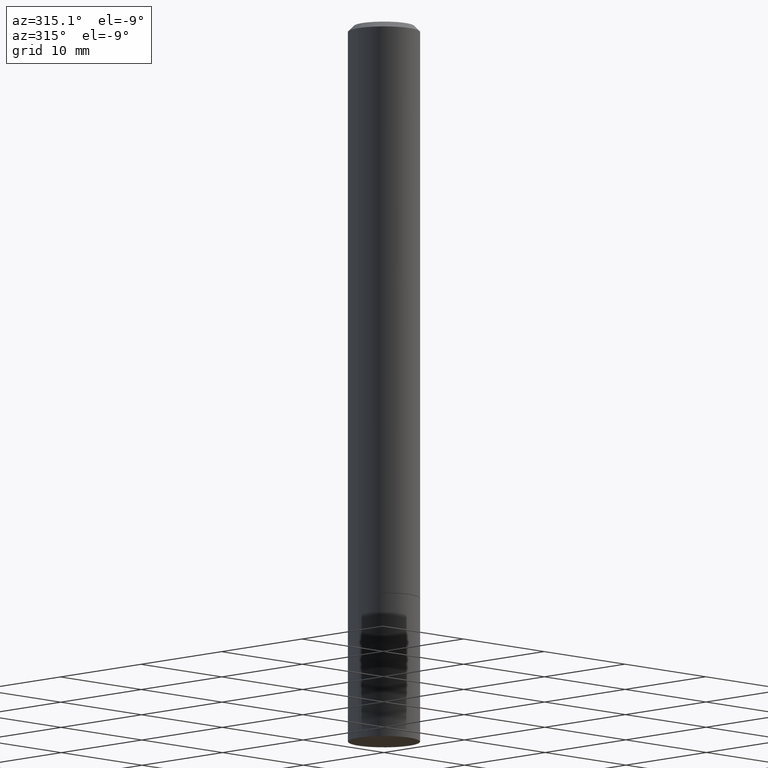
[diagram: clean part render]
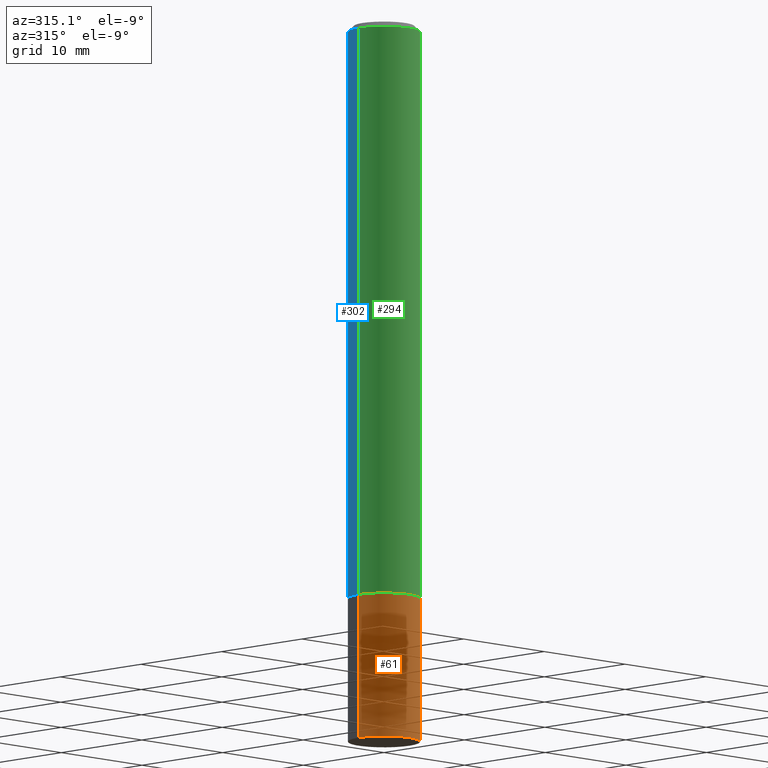
[diagram: same view with three faces highlighted in distinct colors, each labeled with its STEP entity id]
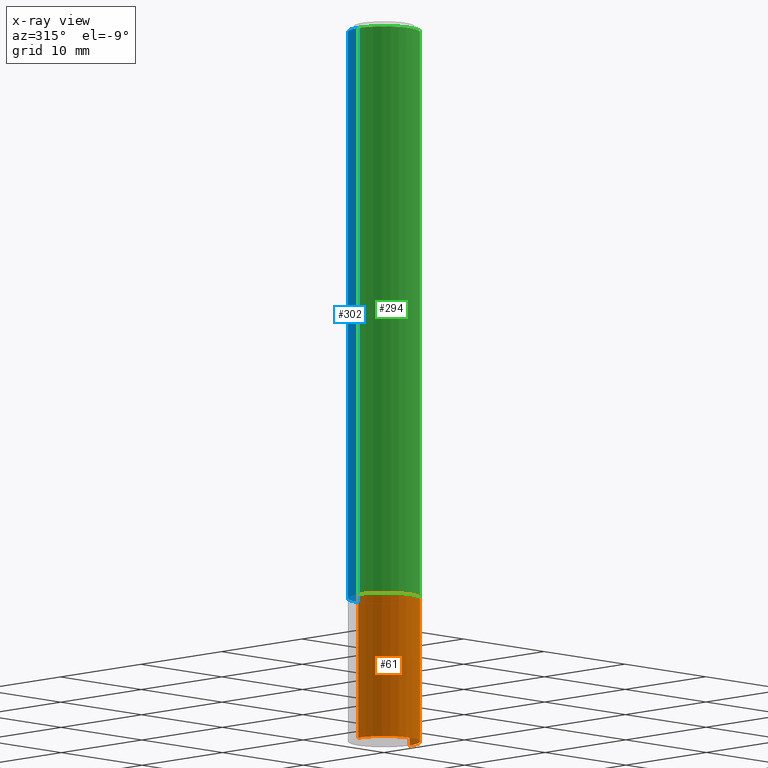
[diagram: x-ray of the same camera — body ghosted, the three highlighted faces saturated]
A machine part, auxiliary view with three faces highlighted in distinct colors.
The next image is the same camera in x-ray (body ghosted, the three faces saturated) — at least one of them is partly hidden behind the body in this view.
Their STEP definitions:

[orange] entity #61 — the highlighted cylindrical surface (edge-blend (fillet) strip) has radius 3.175 mm, axis along (-0, 0, 1).
#1 = CIRCLE ( 'NONE', #197, 0.1250000000000000000 ) ;
#14 = DIRECTION ( 'NONE',  ( 1.000000000000000000, -6.982962677686270655E-15, 0.000000000000000000 ) ) ;
#24 = CARTESIAN_POINT ( 'NONE',  ( -0.1250000000000000000, 8.881784197001252323E-16, -6.148668862818632227E-30 ) ) ;
#41 = VERTEX_POINT ( 'NONE', #315 ) ;
#43 = ORIENTED_EDGE ( 'NONE', *, *, #85, .F. ) ;
#53 = ORIENTED_EDGE ( 'NONE', *, *, #95, .T. ) ;
#61 = ADVANCED_FACE ( 'NONE', ( #348 ), #156, .T. ) ;
#66 = VECTOR ( 'NONE', #142, 39.37007874015748143 ) ;
#71 = LINE ( 'NONE', #131, #134 ) ;
#72 = DIRECTION ( 'NONE',  ( 1.000000000000000000, -6.982962677686266711E-15, 4.876176775795935793E-29 ) ) ;
#73 = VERTEX_POINT ( 'NONE', #322 ) ;
#85 = EDGE_CURVE ( 'NONE', #73, #41, #214, .T. ) ;
#88 = AXIS2_PLACEMENT_3D ( 'NONE', #247, #193, #14 ) ;
#95 = EDGE_CURVE ( 'NONE', #338, #41, #71, .T. ) ;
#101 = DIRECTION ( 'NONE',  ( -2.445468806185136597E-29, 3.491481338843145583E-15, 1.000000000000000000 ) ) ;
#131 = CARTESIAN_POINT ( 'NONE',  ( 0.1250000000000000000, -8.728703347107833388E-16, 6.095220969744919741E-30 ) ) ;
#134 = VECTOR ( 'NONE', #166, 39.37007874015748143 ) ;
#142 = DIRECTION ( 'NONE',  ( -2.445468806185136877E-29, 3.491481338843145188E-15, 1.000000000000000000 ) ) ;
#152 = CARTESIAN_POINT ( 'NONE',  ( 6.113672015462842613E-29, -8.728703347107864943E-15, -2.500000000000000000 ) ) ;
#156 = CYLINDRICAL_SURFACE ( 'NONE', #189, 0.1250000000000000000 ) ;
#166 = DIRECTION ( 'NONE',  ( -2.445468806185136877E-29, 3.491481338843145188E-15, 1.000000000000000000 ) ) ;
#180 = CARTESIAN_POINT ( 'NONE',  ( -0.1250000000000000000, -6.967654592696952427E-15, -2.500000000000000000 ) ) ;
#189 = AXIS2_PLACEMENT_3D ( 'NONE', #195, #101, #72 ) ;
#193 = DIRECTION ( 'NONE',  ( -2.445468806185136597E-29, 3.491481338843145583E-15, 1.000000000000000000 ) ) ;
#195 = CARTESIAN_POINT ( 'NONE',  ( 0.000000000000000000, 0.000000000000000000, 0.000000000000000000 ) ) ;
#197 = AXIS2_PLACEMENT_3D ( 'NONE', #152, #201, #366 ) ;
#201 = DIRECTION ( 'NONE',  ( -2.445468806185136597E-29, 3.491481338843145583E-15, 1.000000000000000000 ) ) ;
#214 = CIRCLE ( 'NONE', #88, 0.1250000000000000000 ) ;
#220 = ORIENTED_EDGE ( 'NONE', *, *, #357, .F. ) ;
#226 = CARTESIAN_POINT ( 'NONE',  ( 0.1250000000000000000, -9.601573681818648281E-15, -2.500000000000000000 ) ) ;
#243 = ORIENTED_EDGE ( 'NONE', *, *, #253, .T. ) ;
#247 = CARTESIAN_POINT ( 'NONE',  ( 4.890937612370273194E-29, -6.982962677686291165E-15, -2.000000000000000000 ) ) ;
#253 = EDGE_CURVE ( 'NONE', #279, #338, #1, .T. ) ;
#257 = EDGE_LOOP ( 'NONE', ( #220, #243, #53, #43 ) ) ;
#279 = VERTEX_POINT ( 'NONE', #180 ) ;
#315 = CARTESIAN_POINT ( 'NONE',  ( 0.1250000000000000000, -7.855833012397075293E-15, -2.000000000000000000 ) ) ;
#322 = CARTESIAN_POINT ( 'NONE',  ( -0.1250000000000000000, -6.967654592696952427E-15, -2.000000000000000000 ) ) ;
#338 = VERTEX_POINT ( 'NONE', #226 ) ;
#343 = LINE ( 'NONE', #24, #66 ) ;
#348 = FACE_OUTER_BOUND ( 'NONE', #257, .T. ) ;
#357 = EDGE_CURVE ( 'NONE', #279, #73, #343, .T. ) ;
#366 = DIRECTION ( 'NONE',  ( 1.000000000000000000, -6.982962677686270655E-15, 0.000000000000000000 ) ) ;

[blue] entity #302 — the highlighted cylindrical surface (edge-blend (fillet) strip) has radius 3.175 mm, axis along (-0, 0, 1).
#2 = VERTEX_POINT ( 'NONE', #170 ) ;
#31 = AXIS2_PLACEMENT_3D ( 'NONE', #90, #280, #278 ) ;
#47 = AXIS2_PLACEMENT_3D ( 'NONE', #272, #69, #244 ) ;
#58 = CARTESIAN_POINT ( 'NONE',  ( 4.890937612370280165E-31, -6.982962677686301470E-17, -0.02000000000000003164 ) ) ;
#59 = EDGE_CURVE ( 'NONE', #194, #298, #282, .T. ) ;
#65 = AXIS2_PLACEMENT_3D ( 'NONE', #58, #287, #150 ) ;
#69 = DIRECTION ( 'NONE',  ( -2.445468806185136597E-29, 3.491481338843145583E-15, 1.000000000000000000 ) ) ;
#75 = ORIENTED_EDGE ( 'NONE', *, *, #59, .F. ) ;
#79 = CIRCLE ( 'NONE', #47, 0.1250000000000000000 ) ;
#90 = CARTESIAN_POINT ( 'NONE',  ( 0.000000000000000000, 0.000000000000000000, 0.000000000000000000 ) ) ;
#106 = EDGE_CURVE ( 'NONE', #133, #194, #219, .T. ) ;
#110 = CYLINDRICAL_SURFACE ( 'NONE', #31, 0.1249999999999998751 ) ;
#117 = EDGE_CURVE ( 'NONE', #133, #2, #79, .T. ) ;
#133 = VERTEX_POINT ( 'NONE', #217 ) ;
#143 = EDGE_LOOP ( 'NONE', ( #328, #255, #75, #227 ) ) ;
#149 = VECTOR ( 'NONE', #295, 39.37007874015748143 ) ;
#150 = DIRECTION ( 'NONE',  ( 1.000000000000000000, -6.982962677686266711E-15, 0.000000000000000000 ) ) ;
#162 = LINE ( 'NONE', #356, #149 ) ;
#168 = CARTESIAN_POINT ( 'NONE',  ( -0.1249999999999997641, 8.030407079339186601E-16, -0.02000000000000003164 ) ) ;
#170 = CARTESIAN_POINT ( 'NONE',  ( -0.1250000000000000000, -2.636471991862026946E-15, -1.998999999999999888 ) ) ;
#186 = EDGE_CURVE ( 'NONE', #2, #298, #162, .T. ) ;
#194 = VERTEX_POINT ( 'NONE', #325 ) ;
#204 = VECTOR ( 'NONE', #359, 39.37007874015748143 ) ;
#217 = CARTESIAN_POINT ( 'NONE',  ( 0.1250000000000000000, -7.852341531058230708E-15, -1.998999999999999888 ) ) ;
#219 = LINE ( 'NONE', #301, #204 ) ;
#227 = ORIENTED_EDGE ( 'NONE', *, *, #106, .F. ) ;
#244 = DIRECTION ( 'NONE',  ( 1.000000000000000000, -6.982962677686262766E-15, 0.000000000000000000 ) ) ;
#255 = ORIENTED_EDGE ( 'NONE', *, *, #186, .T. ) ;
#272 = CARTESIAN_POINT ( 'NONE',  ( 4.888492143564087591E-29, -6.979471196347447369E-15, -1.998999999999999888 ) ) ;
#278 = DIRECTION ( 'NONE',  ( 1.000000000000000000, -6.982962677686267499E-15, 4.876176775795935793E-29 ) ) ;
#280 = DIRECTION ( 'NONE',  ( -2.445468806185136597E-29, 3.491481338843145583E-15, 1.000000000000000000 ) ) ;
#282 = CIRCLE ( 'NONE', #65, 0.1249999999999997641 ) ;
#287 = DIRECTION ( 'NONE',  ( -2.445468806185136597E-29, 3.491481338843145583E-15, 1.000000000000000000 ) ) ;
#295 = DIRECTION ( 'NONE',  ( -2.445468806185136877E-29, 3.491481338843145188E-15, 1.000000000000000000 ) ) ;
#298 = VERTEX_POINT ( 'NONE', #168 ) ;
#301 = CARTESIAN_POINT ( 'NONE',  ( 0.1249999999999998751, -8.728703347107825500E-16, 6.095220969744913435E-30 ) ) ;
#302 = ADVANCED_FACE ( 'NONE', ( #346 ), #110, .T. ) ;
#325 = CARTESIAN_POINT ( 'NONE',  ( 0.1249999999999997641, -9.273918764983027713E-16, -0.02000000000000003164 ) ) ;
#328 = ORIENTED_EDGE ( 'NONE', *, *, #117, .T. ) ;
#346 = FACE_OUTER_BOUND ( 'NONE', #143, .T. ) ;
#356 = CARTESIAN_POINT ( 'NONE',  ( -0.1249999999999998751, 8.881784197001243449E-16, -6.148668862818626622E-30 ) ) ;
#359 = DIRECTION ( 'NONE',  ( -2.445468806185136877E-29, 3.491481338843145188E-15, 1.000000000000000000 ) ) ;

[green] entity #294 — the highlighted cylindrical surface (edge-blend (fillet) strip) has radius 3.175 mm, axis along (-0, 0, 1).
#2 = VERTEX_POINT ( 'NONE', #170 ) ;
#17 = CARTESIAN_POINT ( 'NONE',  ( 4.890937612370280165E-31, -6.982962677686301470E-17, -0.02000000000000003164 ) ) ;
#23 = ORIENTED_EDGE ( 'NONE', *, *, #98, .F. ) ;
#39 = DIRECTION ( 'NONE',  ( 1.000000000000000000, -6.982962677686266711E-15, 0.000000000000000000 ) ) ;
#51 = CARTESIAN_POINT ( 'NONE',  ( 0.000000000000000000, 0.000000000000000000, 0.000000000000000000 ) ) ;
#82 = ORIENTED_EDGE ( 'NONE', *, *, #136, .T. ) ;
#98 = EDGE_CURVE ( 'NONE', #298, #194, #258, .T. ) ;
#99 = CARTESIAN_POINT ( 'NONE',  ( 4.888492143564087591E-29, -6.979471196347447369E-15, -1.998999999999999888 ) ) ;
#103 = AXIS2_PLACEMENT_3D ( 'NONE', #17, #192, #39 ) ;
#106 = EDGE_CURVE ( 'NONE', #133, #194, #219, .T. ) ;
#127 = CIRCLE ( 'NONE', #271, 0.1250000000000000000 ) ;
#133 = VERTEX_POINT ( 'NONE', #217 ) ;
#136 = EDGE_CURVE ( 'NONE', #2, #133, #127, .T. ) ;
#149 = VECTOR ( 'NONE', #295, 39.37007874015748143 ) ;
#159 = DIRECTION ( 'NONE',  ( -2.445468806185136597E-29, 3.491481338843145583E-15, 1.000000000000000000 ) ) ;
#162 = LINE ( 'NONE', #356, #149 ) ;
#168 = CARTESIAN_POINT ( 'NONE',  ( -0.1249999999999997641, 8.030407079339186601E-16, -0.02000000000000003164 ) ) ;
#170 = CARTESIAN_POINT ( 'NONE',  ( -0.1250000000000000000, -2.636471991862026946E-15, -1.998999999999999888 ) ) ;
#175 = EDGE_LOOP ( 'NONE', ( #268, #82, #330, #23 ) ) ;
#186 = EDGE_CURVE ( 'NONE', #2, #298, #162, .T. ) ;
#192 = DIRECTION ( 'NONE',  ( -2.445468806185136597E-29, 3.491481338843145583E-15, 1.000000000000000000 ) ) ;
#194 = VERTEX_POINT ( 'NONE', #325 ) ;
#204 = VECTOR ( 'NONE', #359, 39.37007874015748143 ) ;
#211 = DIRECTION ( 'NONE',  ( 1.000000000000000000, -6.982962677686267499E-15, 4.876176775795935793E-29 ) ) ;
#217 = CARTESIAN_POINT ( 'NONE',  ( 0.1250000000000000000, -7.852341531058230708E-15, -1.998999999999999888 ) ) ;
#219 = LINE ( 'NONE', #301, #204 ) ;
#251 = FACE_OUTER_BOUND ( 'NONE', #175, .T. ) ;
#254 = CYLINDRICAL_SURFACE ( 'NONE', #320, 0.1249999999999998751 ) ;
#258 = CIRCLE ( 'NONE', #103, 0.1249999999999997641 ) ;
#268 = ORIENTED_EDGE ( 'NONE', *, *, #186, .F. ) ;
#271 = AXIS2_PLACEMENT_3D ( 'NONE', #99, #159, #327 ) ;
#294 = ADVANCED_FACE ( 'NONE', ( #251 ), #254, .T. ) ;
#295 = DIRECTION ( 'NONE',  ( -2.445468806185136877E-29, 3.491481338843145188E-15, 1.000000000000000000 ) ) ;
#298 = VERTEX_POINT ( 'NONE', #168 ) ;
#301 = CARTESIAN_POINT ( 'NONE',  ( 0.1249999999999998751, -8.728703347107825500E-16, 6.095220969744913435E-30 ) ) ;
#306 = DIRECTION ( 'NONE',  ( -2.445468806185136597E-29, 3.491481338843145583E-15, 1.000000000000000000 ) ) ;
#320 = AXIS2_PLACEMENT_3D ( 'NONE', #51, #306, #211 ) ;
#325 = CARTESIAN_POINT ( 'NONE',  ( 0.1249999999999997641, -9.273918764983027713E-16, -0.02000000000000003164 ) ) ;
#327 = DIRECTION ( 'NONE',  ( 1.000000000000000000, -6.982962677686262766E-15, 0.000000000000000000 ) ) ;
#330 = ORIENTED_EDGE ( 'NONE', *, *, #106, .T. ) ;
#356 = CARTESIAN_POINT ( 'NONE',  ( -0.1249999999999998751, 8.881784197001243449E-16, -6.148668862818626622E-30 ) ) ;
#359 = DIRECTION ( 'NONE',  ( -2.445468806185136877E-29, 3.491481338843145188E-15, 1.000000000000000000 ) ) ;